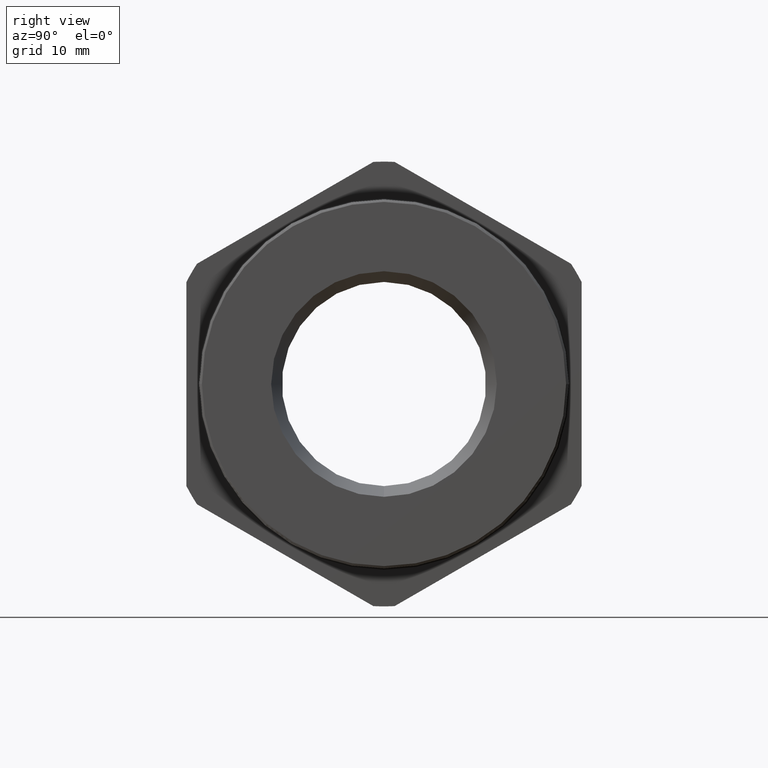
[diagram: clean part render]
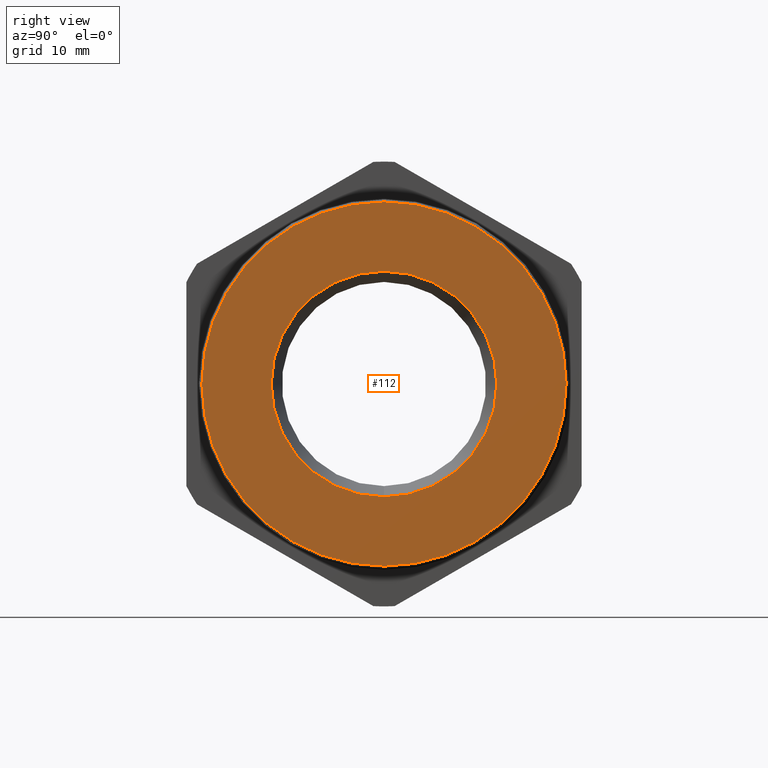
[diagram: same view with one face highlighted and labeled with its STEP entity id]
A machine part, right view. The second image highlights one B-rep face of the part: STEP entity #112.
In plain terms, the highlighted planar face has unit normal (-1, 0, -0).
Its self-contained STEP definition (entity closure, byte-faithful):
#13 = EDGE_LOOP ( 'NONE', ( #19, #18 ) ) ;
#14 = EDGE_CURVE ( 'NONE', #893, #820, #1012, .T. ) ;
#16 = ORIENTED_EDGE ( 'NONE', *, *, #2897, .T. ) ;
#17 = ORIENTED_EDGE ( 'NONE', *, *, #20, .T. ) ;
#18 = ORIENTED_EDGE ( 'NONE', *, *, #14, .T. ) ;
#19 = ORIENTED_EDGE ( 'NONE', *, *, #818, .T. ) ;
#20 = EDGE_CURVE ( 'NONE', #2867, #534, #1001, .T. ) ;
#111 = EDGE_LOOP ( 'NONE', ( #16, #17 ) ) ;
#112 = ADVANCED_FACE ( 'NONE', ( #1165, #1164 ), #1163, .F. ) ;
#534 = VERTEX_POINT ( 'NONE', #1995 ) ;
#818 = EDGE_CURVE ( 'NONE', #820, #893, #2464, .T. ) ;
#820 = VERTEX_POINT ( 'NONE', #2460 ) ;
#893 = VERTEX_POINT ( 'NONE', #2541 ) ;
#997 = DIRECTION ( 'NONE',  ( 0.0000000000000000000, 0.0000000000000000000, 1.000000000000000000 ) ) ;
#998 = DIRECTION ( 'NONE',  ( 1.000000000000000000, 0.0000000000000000000, 0.0000000000000000000 ) ) ;
#999 = CARTESIAN_POINT ( 'NONE',  ( 0.0000000000000000000, -5.716013137531752100E-017, 6.016769379789158100E-017 ) ) ;
#1000 = AXIS2_PLACEMENT_3D ( 'NONE', #999, #998, #997 ) ;
#1001 = CIRCLE ( 'NONE', #1000, 0.9074275754098036800 ) ;
#1008 = DIRECTION ( 'NONE',  ( 0.0000000000000000000, 0.0000000000000000000, 1.000000000000000000 ) ) ;
#1009 = DIRECTION ( 'NONE',  ( -1.000000000000000000, -0.0000000000000000000, -0.0000000000000000000 ) ) ;
#1010 = CARTESIAN_POINT ( 'NONE',  ( 0.0000000000000000000, 0.0000000000000000000, 0.0000000000000000000 ) ) ;
#1011 = AXIS2_PLACEMENT_3D ( 'NONE', #1010, #1009, #1008 ) ;
#1012 = CIRCLE ( 'NONE', #1011, 0.5622440111367856800 ) ;
#1159 = DIRECTION ( 'NONE',  ( -0.0000000000000000000, 0.0000000000000000000, 1.000000000000000000 ) ) ;
#1160 = DIRECTION ( 'NONE',  ( -1.000000000000000000, 0.0000000000000000000, -0.0000000000000000000 ) ) ;
#1161 = CARTESIAN_POINT ( 'NONE',  ( 2.558863544597553300E-019, 0.9116451799997147300, 0.0000000000000000000 ) ) ;
#1162 = AXIS2_PLACEMENT_3D ( 'NONE', #1161, #1160, #1159 ) ;
#1163 = PLANE ( 'NONE',  #1162 ) ;
#1164 = FACE_BOUND ( 'NONE', #13, .T. ) ;
#1165 = FACE_OUTER_BOUND ( 'NONE', #111, .T. ) ;
#1995 = CARTESIAN_POINT ( 'NONE',  ( 0.0000000000000000000, 0.9074275754098034600, 0.0000000000000000000 ) ) ;
#2404 = CARTESIAN_POINT ( 'NONE',  ( 0.0000000000000000000, 0.0000000000000000000, 0.0000000000000000000 ) ) ;
#2460 = CARTESIAN_POINT ( 'NONE',  ( 0.0000000000000000000, 0.0000000000000000000, -0.5622440111367856800 ) ) ;
#2461 = DIRECTION ( 'NONE',  ( 0.0000000000000000000, 0.0000000000000000000, 1.000000000000000000 ) ) ;
#2462 = DIRECTION ( 'NONE',  ( -1.000000000000000000, -0.0000000000000000000, -0.0000000000000000000 ) ) ;
#2463 = AXIS2_PLACEMENT_3D ( 'NONE', #2404, #2462, #2461 ) ;
#2464 = CIRCLE ( 'NONE', #2463, 0.5622440111367856800 ) ;
#2541 = CARTESIAN_POINT ( 'NONE',  ( 0.0000000000000000000, 6.885275884366872400E-017, 0.5622440111367856800 ) ) ;
#2700 = CARTESIAN_POINT ( 'NONE',  ( 0.0000000000000000000, -0.9074275754098036800, 1.111241574480480000E-016 ) ) ;
#2756 = DIRECTION ( 'NONE',  ( 0.0000000000000000000, 0.0000000000000000000, 1.000000000000000000 ) ) ;
#2757 = DIRECTION ( 'NONE',  ( 1.000000000000000000, 0.0000000000000000000, 0.0000000000000000000 ) ) ;
#2758 = CARTESIAN_POINT ( 'NONE',  ( 0.0000000000000000000, -5.716013137531752100E-017, 6.016769379789158100E-017 ) ) ;
#2759 = AXIS2_PLACEMENT_3D ( 'NONE', #2758, #2757, #2756 ) ;
#2760 = CIRCLE ( 'NONE', #2759, 0.9074275754098036800 ) ;
#2867 = VERTEX_POINT ( 'NONE', #2700 ) ;
#2897 = EDGE_CURVE ( 'NONE', #534, #2867, #2760, .T. ) ;